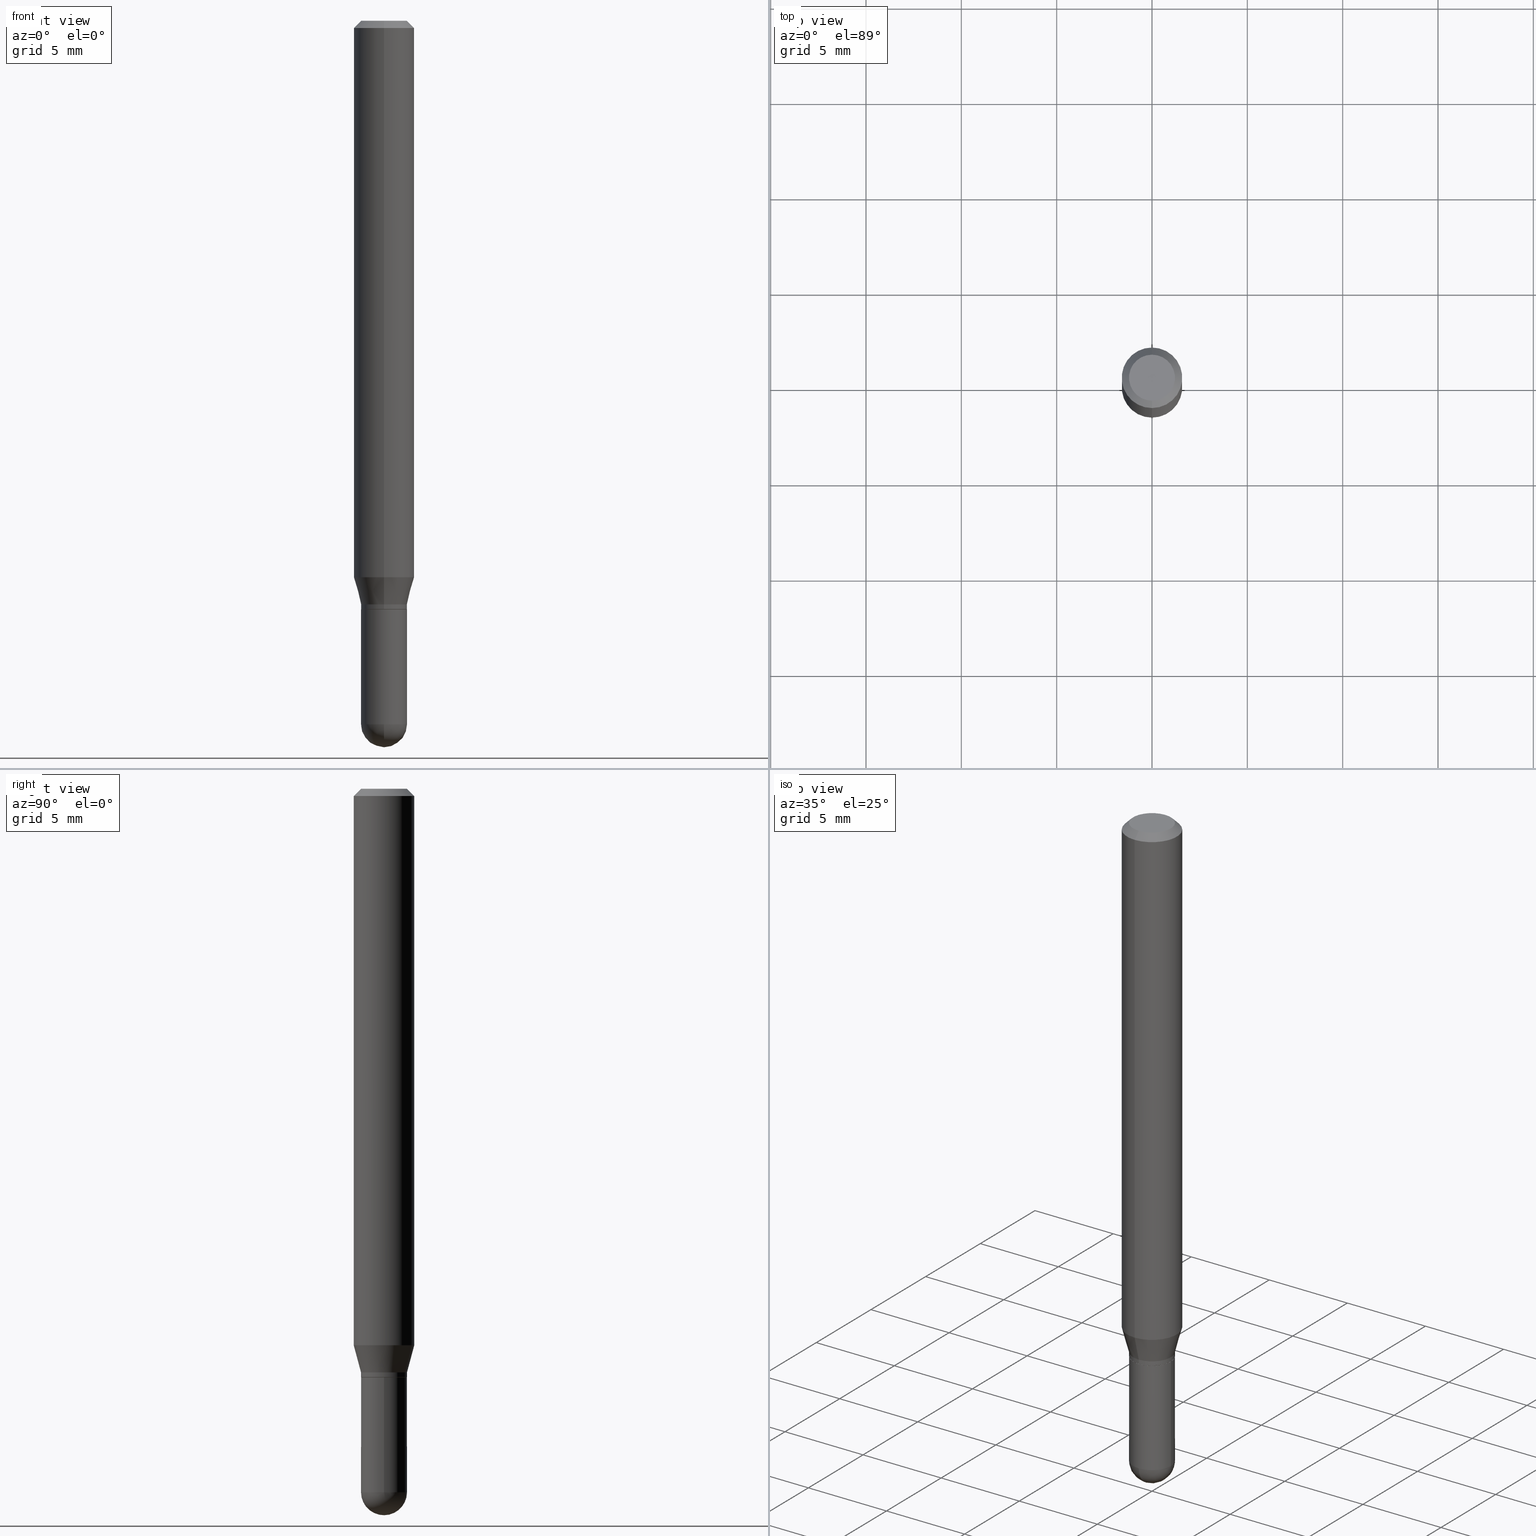
[diagram: canonical four-view strip — front | top / right | iso, engineering-drawing reading convention]
A machine part, canonical four-view strip (front | top / right | iso — engineering-drawing reading convention). The complete STEP part file that produces these views, byte-faithful:
ISO-10303-21;
HEADER;
FILE_DESCRIPTION (( 'STEP AP203' ),
    '1' );
FILE_NAME ('02634.STEP',
    '2024-03-07T20:55:53',
    ( '' ),
    ( '' ),
    'SwSTEP 2.0',
    'SolidWorks 2023',
    '' );
FILE_SCHEMA (( 'CONFIG_CONTROL_DESIGN' ));
ENDSEC;

DATA;
#1 = EDGE_LOOP ( 'NONE', ( #416, #257, #211, #438, #319 ) ) ;
#2 = CIRCLE ( 'NONE', #237, 0.04699999999999999317 ) ;
#3 = EDGE_CURVE ( 'NONE', #334, #105, #156, .T. ) ;
#4 = PERSON_AND_ORGANIZATION ( #120, #260 ) ;
#5 = CARTESIAN_POINT ( 'NONE',  ( 3.375077994860835347E-16, 0.04749999999999498373, -1.452500000000000790 ) ) ;
#6 = PERSON_AND_ORGANIZATION ( #120, #260 ) ;
#7 = EDGE_LOOP ( 'NONE', ( #221, #155, #487, #405 ) ) ;
#8 = CARTESIAN_POINT ( 'NONE',  ( 0.04749999999999999362, -4.573840553884519999E-15, -1.215000000000000080 ) ) ;
#9 = APPLICATION_PROTOCOL_DEFINITION ( 'international standard', 'config_control_design', 1994, #95 ) ;
#10 = ORIENTED_EDGE ( 'NONE', *, *, #439, .T. ) ;
#11 = CARTESIAN_POINT ( 'NONE',  ( 2.971268747987335241E-29, -4.242115244707508975E-15, -1.215000000000000080 ) ) ;
#12 = LOCAL_TIME ( 15, 55, 53.00000000000000000, #483 ) ;
#13 = EDGE_LOOP ( 'NONE', ( #279, #251, #379, #135 ) ) ;
#14 = AXIS2_PLACEMENT_3D ( 'NONE', #432, #309, #182 ) ;
#15 = DIRECTION ( 'NONE',  ( 2.445488681471057444E-29, -3.491452876302475855E-15, -1.000000000000000000 ) ) ;
#16 = AXIS2_PLACEMENT_3D ( 'NONE', #258, #500, #21 ) ;
#17 = EDGE_CURVE ( 'NONE', #484, #216, #201, .T. ) ;
#18 = VERTEX_POINT ( 'NONE', #61 ) ;
#19 = FACE_OUTER_BOUND ( 'NONE', #137, .T. ) ;
#20 = ORIENTED_EDGE ( 'NONE', *, *, #69, .F. ) ;
#21 = DIRECTION ( 'NONE',  ( -6.982962677686265922E-15, -1.000000000000000000, 3.491452876302475461E-15 ) ) ;
#22 = ADVANCED_FACE ( 'NONE', ( #28 ), #504, .T. ) ;
#23 = CARTESIAN_POINT ( 'NONE',  ( -3.316907271900685203E-16, -0.04750000000000432349, -1.214499999999999913 ) ) ;
#24 = CARTESIAN_POINT ( 'NONE',  ( -4.364351673553635169E-16, -0.06250000000000402456, -1.149019237886467204 ) ) ;
#25 = CC_DESIGN_APPROVAL ( #369, ( #236 ) ) ;
#26 = DIRECTION ( 'NONE',  ( -6.982962677686265133E-15, -1.000000000000000000, 2.875629467015010530E-15 ) ) ;
#27 = CARTESIAN_POINT ( 'NONE',  ( 0.04750000000000000749, -3.316907271900977082E-16, 2.316183968503069432E-30 ) ) ;
#28 = FACE_OUTER_BOUND ( 'NONE', #1, .T. ) ;
#29 = ADVANCED_BREP_SHAPE_REPRESENTATION ( '02634', ( #160, #342, #196 ), #420 ) ;
#30 = LINE ( 'NONE', #267, #341 ) ;
#31 = DIRECTION ( 'NONE',  ( -2.445488681471057444E-29, 3.491452876302475855E-15, 1.000000000000000000 ) ) ;
#32 = CARTESIAN_POINT ( 'NONE',  ( 3.668233022206667038E-31, -5.237179314453828365E-17, -0.01500000000000032904 ) ) ;
#33 = EDGE_CURVE ( 'NONE', #397, #18, #144, .T. ) ;
#34 = VECTOR ( 'NONE', #352, 39.37007874015748143 ) ;
#35 = CONICAL_SURFACE ( 'NONE', #184, 0.04750000000000005607, 0.2617993877991497964 ) ;
#36 = CYLINDRICAL_SURFACE ( 'NONE', #250, 0.04750000000000005607 ) ;
#37 = EDGE_CURVE ( 'NONE', #179, #397, #344, .T. ) ;
#38 = DIRECTION ( 'NONE',  ( -2.445468806185136597E-29, 3.491481338843145583E-15, 1.000000000000000000 ) ) ;
#39 = ORIENTED_EDGE ( 'NONE', *, *, #3, .T. ) ;
#40 = PERSON_AND_ORGANIZATION_ROLE ( 'creator' ) ;
#41 = EDGE_CURVE ( 'NONE', #105, #334, #270, .T. ) ;
#42 = PERSON_AND_ORGANIZATION ( #120, #260 ) ;
#43 = AXIS2_PLACEMENT_3D ( 'NONE', #390, #311, #273 ) ;
#44 = DATE_AND_TIME ( #406, #409 ) ;
#45 = CIRCLE ( 'NONE', #228, 0.04750000000000005607 ) ;
#46 = ORIENTED_EDGE ( 'NONE', *, *, #99, .F. ) ;
#47 = CARTESIAN_POINT ( 'NONE',  ( -4.287811248607203282E-16, -0.06250000000000005551, -0.01500000000000011047 ) ) ;
#48 = EDGE_LOOP ( 'NONE', ( #336, #325 ) ) ;
#49 = DIRECTION ( 'NONE',  ( -6.982962677686265922E-15, -1.000000000000000000, 3.483106191921935554E-15 ) ) ;
#50 = PERSON_AND_ORGANIZATION ( #120, #260 ) ;
#51 = EDGE_CURVE ( 'NONE', #18, #397, #437, .T. ) ;
#52 = VERTEX_POINT ( 'NONE', #263 ) ;
#53 = DIRECTION ( 'NONE',  ( -2.445468806185136597E-29, 3.491481338843145583E-15, 1.000000000000000000 ) ) ;
#54 = VECTOR ( 'NONE', #231, 39.37007874015748143 ) ;
#55 = LOCAL_TIME ( 15, 55, 53.00000000000000000, #359 ) ;
#56 = VERTEX_POINT ( 'NONE', #384 ) ;
#57 = DIRECTION ( 'NONE',  ( -2.445488681471057444E-29, 3.491452876302475855E-15, 1.000000000000000000 ) ) ;
#58 = AXIS2_PLACEMENT_3D ( 'NONE', #78, #396, #157 ) ;
#59 = ORIENTED_EDGE ( 'NONE', *, *, #312, .T. ) ;
#60 = APPROVAL ( #168, 'UNSPECIFIED' ) ;
#61 = CARTESIAN_POINT ( 'NONE',  ( 4.440892098500906207E-16, 0.06249999999999597544, -1.149019237886467870 ) ) ;
#62 = CARTESIAN_POINT ( 'NONE',  ( 0.000000000000000000, 0.000000000000000000, 0.000000000000000000 ) ) ;
#63 = DIRECTION ( 'NONE',  ( 1.000000000000000000, -6.982962677686266711E-15, 4.876176775795934672E-29 ) ) ;
#64 = DIRECTION ( 'NONE',  ( -6.982962677686265922E-15, -1.000000000000000000, 3.483106191921935554E-15 ) ) ;
#65 = AXIS2_PLACEMENT_3D ( 'NONE', #355, #509, #315 ) ;
#66 = FACE_OUTER_BOUND ( 'NONE', #463, .T. ) ;
#67 = DIRECTION ( 'NONE',  ( 1.000000000000000000, -6.982962677686261977E-15, 0.000000000000000000 ) ) ;
#68 = DIRECTION ( 'NONE',  ( -6.982962677686265922E-15, -1.000000000000000000, 0.000000000000000000 ) ) ;
#69 = EDGE_CURVE ( 'NONE', #334, #173, #428, .T. ) ;
#70 = DIRECTION ( 'NONE',  ( -6.982962677686265922E-15, -1.000000000000000000, 3.491452876302475855E-15 ) ) ;
#71 = CARTESIAN_POINT ( 'NONE',  ( 2.809913541043856998E-29, -4.011746523045585662E-15, -1.149019237886467426 ) ) ;
#72 = LINE ( 'NONE', #495, #391 ) ;
#73 = PRODUCT ( '02634', '02634', '', ( #285 ) ) ;
#74 = AXIS2_PLACEMENT_3D ( 'NONE', #191, #386, #389 ) ;
#75 = VECTOR ( 'NONE', #433, 39.37007874015748143 ) ;
#76 = CARTESIAN_POINT ( 'NONE',  ( 3.840629472727447874E-16, 0.04749999999999999362, -4.939923113072091241E-16 ) ) ;
#77 = CC_DESIGN_PERSON_AND_ORGANIZATION_ASSIGNMENT ( #243, #329, ( #236 ) ) ;
#78 = CARTESIAN_POINT ( 'NONE',  ( 2.971268747987335241E-29, -4.242115244707508975E-15, -1.215000000000000080 ) ) ;
#79 = ORIENTED_EDGE ( 'NONE', *, *, #197, .F. ) ;
#80 = CARTESIAN_POINT ( 'NONE',  ( -3.316907271900685203E-16, -0.04750000000000426797, -1.205000000000000293 ) ) ;
#81 = AXIS2_PLACEMENT_3D ( 'NONE', #145, #464, #70 ) ;
#82 = DIRECTION ( 'NONE',  ( 1.000000000000000000, 0.000000000000000000, 0.000000000000000000 ) ) ;
#83 = EDGE_LOOP ( 'NONE', ( #414, #238, #244, #489 ) ) ;
#84 = PERSON_AND_ORGANIZATION_ROLE ( 'creator' ) ;
#85 = ORIENTED_EDGE ( 'NONE', *, *, #245, .T. ) ;
#86 = DATE_TIME_ROLE ( 'creation_date' ) ;
#87 = ORIENTED_EDGE ( 'NONE', *, *, #256, .T. ) ;
#88 = DIRECTION ( 'NONE',  ( -6.982962677686266711E-15, -1.000000000000000000, 2.906221269855599689E-15 ) ) ;
#89 = DATE_AND_TIME ( #327, #456 ) ;
#90 = ORIENTED_EDGE ( 'NONE', *, *, #378, .F. ) ;
#91 = FACE_OUTER_BOUND ( 'NONE', #455, .T. ) ;
#92 = PRODUCT_RELATED_PRODUCT_CATEGORY ( 'detail', '', ( #73 ) ) ;
#93 = ORIENTED_EDGE ( 'NONE', *, *, #361, .F. ) ;
#94 = DIRECTION ( 'NONE',  ( -2.445488681471057444E-29, 3.491452876302475855E-15, 1.000000000000000000 ) ) ;
#95 = APPLICATION_CONTEXT ( 'configuration controlled 3d designs of mechanical parts and assemblies' ) ;
#96 = ORIENTED_EDGE ( 'NONE', *, *, #17, .F. ) ;
#97 = DIRECTION ( 'NONE',  ( 2.438088387897960049E-29, -3.491481338843145188E-15, -1.000000000000000000 ) ) ;
#98 = VERTEX_POINT ( 'NONE', #499 ) ;
#99 = EDGE_CURVE ( 'NONE', #173, #179, #45, .T. ) ;
#100 = DIRECTION ( 'NONE',  ( -2.445488681471057444E-29, 3.491452876302475855E-15, 1.000000000000000000 ) ) ;
#101 = AXIS2_PLACEMENT_3D ( 'NONE', #32, #431, #64 ) ;
#102 = DIRECTION ( 'NONE',  ( -2.445488681471057444E-29, 3.491452876302475855E-15, 1.000000000000000000 ) ) ;
#103 = FACE_OUTER_BOUND ( 'NONE', #83, .T. ) ;
#104 =( LENGTH_UNIT ( ) NAMED_UNIT ( * ) SI_UNIT ( $, .METRE. ) );
#105 = VERTEX_POINT ( 'NONE', #23 ) ;
#106 = LINE ( 'NONE', #271, #54 ) ;
#107 = CARTESIAN_POINT ( 'NONE',  ( 3.552043440983912297E-29, -5.071376644669670605E-15, -1.452500000000000346 ) ) ;
#108 = CARTESIAN_POINT ( 'NONE',  ( -3.773273898774340269E-16, -0.04749999999999999362, -1.623042880584739168E-16 ) ) ;
#109 = AXIS2_PLACEMENT_3D ( 'NONE', #188, #348, #346 ) ;
#110 = ADVANCED_FACE ( 'NONE', ( #66 ), #175, .T. ) ;
#111 = SPHERICAL_SURFACE ( 'NONE', #118, 0.04750000000000012546 ) ;
#112 = FACE_OUTER_BOUND ( 'NONE', #421, .T. ) ;
#113 = ORIENTED_EDGE ( 'NONE', *, *, #256, .F. ) ;
#114 = LINE ( 'NONE', #27, #75 ) ;
#115 = CARTESIAN_POINT ( 'NONE',  ( 0.04750000000000000749, -4.988453962872144057E-15, -1.452500000000000346 ) ) ;
#116 = VECTOR ( 'NONE', #304, 39.37007874015748143 ) ;
#117 = EDGE_CURVE ( 'NONE', #166, #131, #375, .T. ) ;
#118 = AXIS2_PLACEMENT_3D ( 'NONE', #469, #460, #272 ) ;
#119 = LINE ( 'NONE', #239, #186 ) ;
#120 = PERSON ( 'UNSPECIFIED', 'UNSPECIFIED', 'UNSPECIFIED', ('UNSPECIFIED'), ('UNSPECIFIED'), ('UNSPECIFIED') ) ;
#121 = ORIENTED_EDGE ( 'NONE', *, *, #17, .T. ) ;
#122 = AXIS2_PLACEMENT_3D ( 'NONE', #367, #374, #410 ) ;
#123 = AXIS2_PLACEMENT_3D ( 'NONE', #306, #149, #461 ) ;
#124 = EDGE_CURVE ( 'NONE', #443, #131, #465, .T. ) ;
#125 = ORIENTED_EDGE ( 'NONE', *, *, #3, .F. ) ;
#126 = DIMENSIONAL_EXPONENTS ( 1.000000000000000000, 0.000000000000000000, 0.000000000000000000, 0.000000000000000000, 0.000000000000000000, 0.000000000000000000, 0.000000000000000000 ) ;
#127 = PERSON_AND_ORGANIZATION ( #120, #260 ) ;
#128 = ORIENTED_EDGE ( 'NONE', *, *, #295, .T. ) ;
#129 = DIRECTION ( 'NONE',  ( 1.000000000000000000, -6.982962677686266711E-15, 4.876176775795934672E-29 ) ) ;
#130 = SHAPE_DEFINITION_REPRESENTATION ( #508, #29 ) ;
#131 = VERTEX_POINT ( 'NONE', #230 ) ;
#132 = CARTESIAN_POINT ( 'NONE',  ( 3.547981401110308940E-29, -5.077193716965619798E-15, -1.452500000000000124 ) ) ;
#133 = ADVANCED_FACE ( 'NONE', ( #501 ), #111, .T. ) ;
#134 = DATE_AND_TIME ( #446, #268 ) ;
#135 = ORIENTED_EDGE ( 'NONE', *, *, #203, .F. ) ;
#136 = CARTESIAN_POINT ( 'NONE',  ( 3.316907271901273398E-16, 0.04749999999999575395, -1.215000000000000302 ) ) ;
#137 = EDGE_LOOP ( 'NONE', ( #376, #261, #206, #159, #320 ) ) ;
#138 = CYLINDRICAL_SURFACE ( 'NONE', #16, 0.06250000000000000000 ) ;
#139 = ORIENTED_EDGE ( 'NONE', *, *, #317, .F. ) ;
#140 =( CONVERSION_BASED_UNIT ( 'INCH', #204 ) LENGTH_UNIT ( ) NAMED_UNIT ( #126 ) );
#141 = UNCERTAINTY_MEASURE_WITH_UNIT (LENGTH_MEASURE( 1.000000000000000082E-05 ), #140, 'distance_accuracy_value', 'NONE');
#142 = CONICAL_SURFACE ( 'NONE', #241, 0.04699999999999999317, 0.7853981633974739252 ) ;
#143 = EDGE_LOOP ( 'NONE', ( #20, #39, #298, #46 ) ) ;
#144 = CIRCLE ( 'NONE', #449, 0.06250000000000000000 ) ;
#145 = CARTESIAN_POINT ( 'NONE',  ( 2.971268747987335241E-29, -4.242115244707508975E-15, -1.215000000000000080 ) ) ;
#146 = DIRECTION ( 'NONE',  ( 1.000000000000000000, -6.982962677686260400E-15, 0.000000000000000000 ) ) ;
#147 = CYLINDRICAL_SURFACE ( 'NONE', #123, 0.04750000000000005607 ) ;
#148 = CARTESIAN_POINT ( 'NONE',  ( 2.971268747987335241E-29, -4.242115244707508975E-15, -1.215000000000000080 ) ) ;
#149 = DIRECTION ( 'NONE',  ( -2.445488681471057444E-29, 3.491452876302475855E-15, 1.000000000000000000 ) ) ;
#150 = CIRCLE ( 'NONE', #503, 0.06250000000000000000 ) ;
#151 = CARTESIAN_POINT ( 'NONE',  ( 3.552043440983912297E-29, -5.071376644669670605E-15, -1.452500000000000346 ) ) ;
#152 = CARTESIAN_POINT ( 'NONE',  ( 2.809913541043856998E-29, -4.011746523045585662E-15, -1.149019237886467426 ) ) ;
#153 = DIRECTION ( 'NONE',  ( -2.445468806185136597E-29, 3.491481338843145583E-15, 1.000000000000000000 ) ) ;
#154 = PRODUCT_DEFINITION ( 'UNKNOWN', '', #225, #441 ) ;
#155 = ORIENTED_EDGE ( 'NONE', *, *, #69, .T. ) ;
#156 = CIRCLE ( 'NONE', #333, 0.04750000000000005607 ) ;
#157 = DIRECTION ( 'NONE',  ( -6.982962677686266711E-15, -1.000000000000000000, 2.906221269855599689E-15 ) ) ;
#158 = DATE_AND_TIME ( #372, #12 ) ;
#159 = ORIENTED_EDGE ( 'NONE', *, *, #470, .F. ) ;
#160 = MANIFOLD_SOLID_BREP ( 'Body-Move/Copy2[1]', #399 ) ;
#161 = EDGE_CURVE ( 'NONE', #52, #284, #411, .T. ) ;
#162 = APPROVAL_ROLE ( '' ) ;
#163 = ORIENTED_EDGE ( 'NONE', *, *, #99, .T. ) ;
#164 = AXIS2_PLACEMENT_3D ( 'NONE', #380, #190, #67 ) ;
#165 = APPROVAL_STATUS ( 'not_yet_approved' ) ;
#166 = VERTEX_POINT ( 'NONE', #493 ) ;
#167 = CARTESIAN_POINT ( 'NONE',  ( 3.668233022206667038E-31, -5.237179314453828365E-17, -0.01500000000000032904 ) ) ;
#168 = APPROVAL_STATUS ( 'not_yet_approved' ) ;
#169 = APPROVAL ( #318, 'UNSPECIFIED' ) ;
#170 = EDGE_LOOP ( 'NONE', ( #219, #10, #227, #93 ) ) ;
#171 = CARTESIAN_POINT ( 'NONE',  ( 2.946813861172625415E-29, -4.207200715944485096E-15, -1.205000000000000293 ) ) ;
#172 = DATE_AND_TIME ( #477, #55 ) ;
#173 = VERTEX_POINT ( 'NONE', #305 ) ;
#174 = DIRECTION ( 'NONE',  ( -4.851104656540964275E-15, -0.7071067811865500152, -0.7071067811865450192 ) ) ;
#175 = CONICAL_SURFACE ( 'NONE', #322, 0.04699999999999999317, 0.7853981633974739252 ) ;
#176 = CIRCLE ( 'NONE', #278, 0.04750000000000005607 ) ;
#177 = ORIENTED_EDGE ( 'NONE', *, *, #37, .T. ) ;
#178 = CARTESIAN_POINT ( 'NONE',  ( 3.375077994860774703E-16, 0.04749999999999578865, -1.214500000000000357 ) ) ;
#179 = VERTEX_POINT ( 'NONE', #80 ) ;
#180 = CARTESIAN_POINT ( 'NONE',  ( 2.946813861172625415E-29, -4.207200715944485096E-15, -1.205000000000000293 ) ) ;
#181 = CC_DESIGN_PERSON_AND_ORGANIZATION_ASSIGNMENT ( #6, #442, ( #73 ) ) ;
#182 = DIRECTION ( 'NONE',  ( 1.000000000000000000, -6.982962677686261977E-15, 0.000000000000000000 ) ) ;
#183 = DIRECTION ( 'NONE',  ( 4.937700262164548042E-15, 0.7071067811865451302, -0.7071067811865499042 ) ) ;
#184 = AXIS2_PLACEMENT_3D ( 'NONE', #294, #94, #326 ) ;
#185 = DIRECTION ( 'NONE',  ( -2.445488681471057444E-29, 3.491452876302475855E-15, 1.000000000000000000 ) ) ;
#186 = VECTOR ( 'NONE', #281, 39.37007874015748143 ) ;
#187 = LINE ( 'NONE', #345, #259 ) ;
#188 = CARTESIAN_POINT ( 'NONE',  ( 2.970046003646599189E-29, -4.240369518269357505E-15, -1.214500000000000135 ) ) ;
#189 = CC_DESIGN_PERSON_AND_ORGANIZATION_ASSIGNMENT ( #127, #84, ( #225 ) ) ;
#190 = DIRECTION ( 'NONE',  ( -2.445468806185136597E-29, 3.491481338843145583E-15, 1.000000000000000000 ) ) ;
#191 = CARTESIAN_POINT ( 'NONE',  ( 8.024829527183616290E-45, -1.145714324781423715E-30, -3.281482996828415081E-16 ) ) ;
#192 = FACE_OUTER_BOUND ( 'NONE', #48, .T. ) ;
#193 = CARTESIAN_POINT ( 'NONE',  ( -3.316907271900685203E-16, -0.04750000000000426797, -1.205000000000000293 ) ) ;
#194 = CONICAL_SURFACE ( 'NONE', #502, 0.06250000000000000000, 0.7853981633974483900 ) ;
#195 = DIRECTION ( 'NONE',  ( 6.982962677686265922E-15, 1.000000000000000000, -3.483106191921935554E-15 ) ) ;
#196 = AXIS2_PLACEMENT_3D ( 'NONE', #253, #402, #82 ) ;
#197 = EDGE_CURVE ( 'NONE', #173, #18, #119, .T. ) ;
#198 = APPLICATION_CONTEXT ( 'configuration controlled 3d designs of mechanical parts and assemblies' ) ;
#199 = CARTESIAN_POINT ( 'NONE',  ( 0.000000000000000000, 0.000000000000000000, 0.000000000000000000 ) ) ;
#200 = VERTEX_POINT ( 'NONE', #115 ) ;
#201 = CIRCLE ( 'NONE', #74, 0.04749999999999999362 ) ;
#202 = VERTEX_POINT ( 'NONE', #398 ) ;
#203 = EDGE_CURVE ( 'NONE', #316, #443, #440, .T. ) ;
#204 = LENGTH_MEASURE_WITH_UNIT ( LENGTH_MEASURE( 0.02539999999999999897 ), #104 );
#205 = APPROVAL_DATE_TIME ( #89, #60 ) ;
#206 = ORIENTED_EDGE ( 'NONE', *, *, #476, .F. ) ;
#207 = AXIS2_PLACEMENT_3D ( 'NONE', #136, #97, #418 ) ;
#208 = AXIS2_PLACEMENT_3D ( 'NONE', #152, #102, #234 ) ;
#209 = ADVANCED_FACE ( 'NONE', ( #472 ), #36, .T. ) ;
#210 =( NAMED_UNIT ( * ) SI_UNIT ( $, .STERADIAN. ) SOLID_ANGLE_UNIT ( ) );
#211 = ORIENTED_EDGE ( 'NONE', *, *, #317, .T. ) ;
#212 = PERSON_AND_ORGANIZATION ( #120, #260 ) ;
#213 = ORIENTED_EDGE ( 'NONE', *, *, #394, .F. ) ;
#214 = CARTESIAN_POINT ( 'NONE',  ( 3.668233022206667038E-31, -5.237179314453828365E-17, -0.01500000000000032904 ) ) ;
#215 = COORDINATED_UNIVERSAL_TIME_OFFSET ( 5, 0, .BEHIND. ) ;
#216 = VERTEX_POINT ( 'NONE', #76 ) ;
#217 = AXIS2_PLACEMENT_3D ( 'NONE', #151, #153, #233 ) ;
#218 = VECTOR ( 'NONE', #174, 39.37007874015748143 ) ;
#219 = ORIENTED_EDGE ( 'NONE', *, *, #226, .T. ) ;
#220 = EDGE_CURVE ( 'NONE', #166, #316, #475, .T. ) ;
#221 = ORIENTED_EDGE ( 'NONE', *, *, #41, .T. ) ;
#222 = DIRECTION ( 'NONE',  ( -6.982962677686265133E-15, -1.000000000000000000, 2.875629467015010530E-15 ) ) ;
#223 = CARTESIAN_POINT ( 'NONE',  ( 3.375077994860479374E-16, 0.04750000000000005607, -1.658440116243677885E-16 ) ) ;
#224 = DIRECTION ( 'NONE',  ( -2.445488681471057444E-29, 3.491452876302475855E-15, 1.000000000000000000 ) ) ;
#225 = PRODUCT_DEFINITION_FORMATION_WITH_SPECIFIED_SOURCE ( 'ANY', '', #73, .NOT_KNOWN. ) ;
#226 = EDGE_CURVE ( 'NONE', #56, #357, #235, .T. ) ;
#227 = ORIENTED_EDGE ( 'NONE', *, *, #41, .F. ) ;
#228 = AXIS2_PLACEMENT_3D ( 'NONE', #313, #307, #392 ) ;
#229 = CARTESIAN_POINT ( 'NONE',  ( 3.339550858072767197E-16, 0.04699999999999575351, -1.215000000000000302 ) ) ;
#230 = CARTESIAN_POINT ( 'NONE',  ( -3.316907271900626039E-16, -0.04750000000000514228, -1.452500000000000124 ) ) ;
#231 = DIRECTION ( 'NONE',  ( -2.445488681471057444E-29, 3.491452876302475855E-15, 1.000000000000000000 ) ) ;
#232 = EDGE_LOOP ( 'NONE', ( #450, #247 ) ) ;
#233 = DIRECTION ( 'NONE',  ( 1.000000000000000000, -6.982962677686260400E-15, 0.000000000000000000 ) ) ;
#234 = DIRECTION ( 'NONE',  ( -6.982962677686265922E-15, -1.000000000000000000, 4.370956789862821150E-15 ) ) ;
#235 = CIRCLE ( 'NONE', #58, 0.04699999999999999317 ) ;
#236 = SECURITY_CLASSIFICATION ( '', '', #479 ) ;
#237 = AXIS2_PLACEMENT_3D ( 'NONE', #297, #422, #88 ) ;
#238 = ORIENTED_EDGE ( 'NONE', *, *, #51, .T. ) ;
#239 = CARTESIAN_POINT ( 'NONE',  ( 3.375077994860774210E-16, 0.04749999999999585110, -1.205000000000000515 ) ) ;
#240 = CC_DESIGN_PERSON_AND_ORGANIZATION_ASSIGNMENT ( #242, #40, ( #154 ) ) ;
#241 = AXIS2_PLACEMENT_3D ( 'NONE', #11, #485, #335 ) ;
#242 = PERSON_AND_ORGANIZATION ( #120, #260 ) ;
#243 = PERSON_AND_ORGANIZATION ( #120, #260 ) ;
#244 = ORIENTED_EDGE ( 'NONE', *, *, #512, .T. ) ;
#245 = EDGE_CURVE ( 'NONE', #357, #56, #2, .T. ) ;
#246 = PERSON_AND_ORGANIZATION_ROLE ( 'design_supplier' ) ;
#247 = ORIENTED_EDGE ( 'NONE', *, *, #161, .T. ) ;
#248 = DIRECTION ( 'NONE',  ( -2.445488681471057444E-29, 3.491452876302475855E-15, 1.000000000000000000 ) ) ;
#249 = APPROVAL_PERSON_ORGANIZATION ( #212, #169, #362 ) ;
#250 = AXIS2_PLACEMENT_3D ( 'NONE', #199, #277, #436 ) ;
#251 = ORIENTED_EDGE ( 'NONE', *, *, #117, .T. ) ;
#252 = DIRECTION ( 'NONE',  ( 1.000000000000000000, -6.982962677686265922E-15, 4.883557194083112901E-29 ) ) ;
#253 = CARTESIAN_POINT ( 'NONE',  ( 0.000000000000000000, 0.000000000000000000, 0.000000000000000000 ) ) ;
#254 = ORIENTED_EDGE ( 'NONE', *, *, #423, .T. ) ;
#255 = DIRECTION ( 'NONE',  ( -6.982962677686265133E-15, -1.000000000000000000, 2.875629467015010530E-15 ) ) ;
#256 = EDGE_CURVE ( 'NONE', #484, #202, #451, .T. ) ;
#257 = ORIENTED_EDGE ( 'NONE', *, *, #124, .T. ) ;
#258 = CARTESIAN_POINT ( 'NONE',  ( 0.000000000000000000, 0.000000000000000000, 0.000000000000000000 ) ) ;
#259 = VECTOR ( 'NONE', #498, 39.37007874015748143 ) ;
#260 = ORGANIZATION ( 'UNSPECIFIED', 'UNSPECIFIED', '' ) ;
#261 = ORIENTED_EDGE ( 'NONE', *, *, #497, .T. ) ;
#262 = SPHERICAL_SURFACE ( 'NONE', #466, 0.04750000000000012546 ) ;
#263 = CARTESIAN_POINT ( 'NONE',  ( -0.04749999999999999362, -4.319255436195999053E-15, -1.215000000000000080 ) ) ;
#264 = DIRECTION ( 'NONE',  ( 2.445488681471057163E-29, -3.491452876302475855E-15, -1.000000000000000000 ) ) ;
#265 = EDGE_CURVE ( 'NONE', #98, #202, #150, .T. ) ;
#266 = ORIENTED_EDGE ( 'NONE', *, *, #33, .F. ) ;
#267 = CARTESIAN_POINT ( 'NONE',  ( 4.364351673553919652E-16, 0.06249999999999995143, -0.01500000000000054588 ) ) ;
#268 = LOCAL_TIME ( 15, 55, 53.00000000000000000, #404 ) ;
#269 = DIRECTION ( 'NONE',  ( -2.445468806185136597E-29, 3.491481338843145583E-15, 1.000000000000000000 ) ) ;
#270 = CIRCLE ( 'NONE', #109, 0.04750000000000005607 ) ;
#271 = CARTESIAN_POINT ( 'NONE',  ( -4.364351673553916201E-16, -0.06250000000000000000, 2.182158047689047163E-16 ) ) ;
#272 = DIRECTION ( 'NONE',  ( -6.982962677686265922E-15, -1.000000000000000000, 5.751258934030012383E-15 ) ) ;
#273 = DIRECTION ( 'NONE',  ( -6.982962677686266711E-15, -1.000000000000000000, 3.491452876302476644E-15 ) ) ;
#274 = CARTESIAN_POINT ( 'NONE',  ( 0.000000000000000000, 0.000000000000000000, 0.000000000000000000 ) ) ;
#275 = ADVANCED_FACE ( 'NONE', ( #377 ), #35, .T. ) ;
#276 = CARTESIAN_POINT ( 'NONE',  ( 3.357314426466772183E-16, 0.04699999999999575351, -1.215000000000000302 ) ) ;
#277 = DIRECTION ( 'NONE',  ( -2.445488681471057444E-29, 3.491452876302475855E-15, 1.000000000000000000 ) ) ;
#278 = AXIS2_PLACEMENT_3D ( 'NONE', #171, #57, #222 ) ;
#279 = ORIENTED_EDGE ( 'NONE', *, *, #220, .F. ) ;
#280 = ADVANCED_FACE ( 'NONE', ( #457 ), #353, .T. ) ;
#281 = DIRECTION ( 'NONE',  ( 1.839019923739597160E-15, 0.2588190451025245142, 0.9659258262890673130 ) ) ;
#282 = APPLICATION_PROTOCOL_DEFINITION ( 'international standard', 'config_control_design', 1994, #198 ) ;
#283 = AXIS2_PLACEMENT_3D ( 'NONE', #214, #15, #371 ) ;
#284 = VERTEX_POINT ( 'NONE', #8 ) ;
#285 = MECHANICAL_CONTEXT ( 'NONE', #95, 'mechanical' ) ;
#286 = ADVANCED_FACE ( 'NONE', ( #19 ), #448, .T. ) ;
#287 = COORDINATED_UNIVERSAL_TIME_OFFSET ( 5, 0, .BEHIND. ) ;
#288 = ORIENTED_EDGE ( 'NONE', *, *, #51, .F. ) ;
#289 = LINE ( 'NONE', #337, #435 ) ;
#290 = EDGE_LOOP ( 'NONE', ( #400, #128, #408, #366 ) ) ;
#291 = AXIS2_PLACEMENT_3D ( 'NONE', #395, #38, #507 ) ;
#292 =( NAMED_UNIT ( * ) PLANE_ANGLE_UNIT ( ) SI_UNIT ( $, .RADIAN. ) );
#293 = ORIENTED_EDGE ( 'NONE', *, *, #439, .F. ) ;
#294 = CARTESIAN_POINT ( 'NONE',  ( 2.946813861172625415E-29, -4.207200715944485096E-15, -1.205000000000000293 ) ) ;
#295 = EDGE_CURVE ( 'NONE', #18, #98, #289, .T. ) ;
#296 = ORIENTED_EDGE ( 'NONE', *, *, #197, .T. ) ;
#297 = CARTESIAN_POINT ( 'NONE',  ( 2.971268747987335241E-29, -4.242115244707508975E-15, -1.215000000000000080 ) ) ;
#298 = ORIENTED_EDGE ( 'NONE', *, *, #387, .T. ) ;
#299 = FACE_OUTER_BOUND ( 'NONE', #170, .T. ) ;
#300 = CC_DESIGN_APPROVAL ( #169, ( #225 ) ) ;
#301 = AXIS2_PLACEMENT_3D ( 'NONE', #385, #264, #471 ) ;
#302 = DIRECTION ( 'NONE',  ( -6.982962677686265922E-15, -1.000000000000000000, 4.370956789862821150E-15 ) ) ;
#303 = ADVANCED_FACE ( 'NONE', ( #413 ), #323, .T. ) ;
#304 = DIRECTION ( 'NONE',  ( 5.024295867788190974E-15, 0.7071067811865681119, 0.7071067811865270336 ) ) ;
#305 = CARTESIAN_POINT ( 'NONE',  ( 3.907985046680840948E-16, 0.04749999999999585110, -1.205000000000000515 ) ) ;
#306 = CARTESIAN_POINT ( 'NONE',  ( 0.000000000000000000, 0.000000000000000000, 0.000000000000000000 ) ) ;
#307 = DIRECTION ( 'NONE',  ( -2.445488681471057444E-29, 3.491452876302475855E-15, 1.000000000000000000 ) ) ;
#308 = CARTESIAN_POINT ( 'NONE',  ( -3.316907271900980040E-16, -0.04750000000000005607, 1.658440116243677885E-16 ) ) ;
#309 = DIRECTION ( 'NONE',  ( -2.445468806185136597E-29, 3.491481338843145583E-15, 1.000000000000000000 ) ) ;
#310 = VECTOR ( 'NONE', #340, 39.37007874015748143 ) ;
#311 = DIRECTION ( 'NONE',  ( -2.445488681471057444E-29, 3.491452876302475855E-15, 1.000000000000000000 ) ) ;
#312 = EDGE_CURVE ( 'NONE', #179, #173, #176, .T. ) ;
#313 = CARTESIAN_POINT ( 'NONE',  ( 2.946813861172625415E-29, -4.207200715944485096E-15, -1.205000000000000293 ) ) ;
#314 = DIRECTION ( 'NONE',  ( 2.445488681471057444E-29, -3.491452876302475855E-15, -1.000000000000000000 ) ) ;
#315 = DIRECTION ( 'NONE',  ( 7.105427357601001070E-15, 1.000000000000000000, 0.000000000000000000 ) ) ;
#316 = VERTEX_POINT ( 'NONE', #5 ) ;
#317 = EDGE_CURVE ( 'NONE', #131, #200, #363, .T. ) ;
#318 = APPROVAL_STATUS ( 'not_yet_approved' ) ;
#319 = ORIENTED_EDGE ( 'NONE', *, *, #161, .F. ) ;
#320 = ORIENTED_EDGE ( 'NONE', *, *, #378, .T. ) ;
#321 = CC_DESIGN_APPROVAL ( #60, ( #154 ) ) ;
#322 = AXIS2_PLACEMENT_3D ( 'NONE', #148, #185, #339 ) ;
#323 = CONICAL_SURFACE ( 'NONE', #283, 0.06250000000000000000, 0.7853981633974483900 ) ;
#324 = DATE_TIME_ROLE ( 'classification_date' ) ;
#325 = ORIENTED_EDGE ( 'NONE', *, *, #245, .F. ) ;
#326 = DIRECTION ( 'NONE',  ( -6.982962677686265133E-15, -1.000000000000000000, 2.875629467015010530E-15 ) ) ;
#327 = CALENDAR_DATE ( 2024, 7, 3 ) ;
#328 = EDGE_LOOP ( 'NONE', ( #96, #87, #254, #473 ) ) ;
#329 = PERSON_AND_ORGANIZATION_ROLE ( 'classification_officer' ) ;
#330 = ORIENTED_EDGE ( 'NONE', *, *, #117, .F. ) ;
#331 = FACE_OUTER_BOUND ( 'NONE', #232, .T. ) ;
#332 = ADVANCED_FACE ( 'NONE', ( #91 ), #262, .T. ) ;
#333 = AXIS2_PLACEMENT_3D ( 'NONE', #430, #31, #26 ) ;
#334 = VERTEX_POINT ( 'NONE', #178 ) ;
#335 = DIRECTION ( 'NONE',  ( -6.982962677686266711E-15, -1.000000000000000000, 2.906221269855599689E-15 ) ) ;
#336 = ORIENTED_EDGE ( 'NONE', *, *, #226, .F. ) ;
#337 = CARTESIAN_POINT ( 'NONE',  ( 4.440892098500625669E-16, 0.06250000000000000000, -2.182158047689047163E-16 ) ) ;
#338 = ADVANCED_FACE ( 'NONE', ( #299 ), #142, .T. ) ;
#339 = DIRECTION ( 'NONE',  ( -6.982962677686266711E-15, -1.000000000000000000, 2.906221269855599689E-15 ) ) ;
#340 = DIRECTION ( 'NONE',  ( -2.445488681471057444E-29, 3.491452876302475855E-15, 1.000000000000000000 ) ) ;
#341 = VECTOR ( 'NONE', #183, 39.37007874015748143 ) ;
#342 = MANIFOLD_SOLID_BREP ( 'Body-Move/Copy2[2]', #383 ) ;
#343 = AXIS2_PLACEMENT_3D ( 'NONE', #496, #467, #68 ) ;
#344 = LINE ( 'NONE', #193, #34 ) ;
#345 = CARTESIAN_POINT ( 'NONE',  ( -0.04750000000000000749, 3.375077994860476415E-16, -2.336494167871080260E-30 ) ) ;
#346 = DIRECTION ( 'NONE',  ( -6.982962677686265133E-15, -1.000000000000000000, 2.875629467015010530E-15 ) ) ;
#347 = FACE_OUTER_BOUND ( 'NONE', #143, .T. ) ;
#348 = DIRECTION ( 'NONE',  ( -2.445488681471057444E-29, 3.491452876302475855E-15, 1.000000000000000000 ) ) ;
#349 = LINE ( 'NONE', #229, #116 ) ;
#350 = ADVANCED_FACE ( 'NONE', ( #331 ), #488, .F. ) ;
#351 = APPROVAL_PERSON_ORGANIZATION ( #50, #60, #162 ) ;
#352 = DIRECTION ( 'NONE',  ( -1.807323732225326984E-15, -0.2588190451025177419, 0.9659258262890690894 ) ) ;
#353 = CONICAL_SURFACE ( 'NONE', #407, 0.04750000000000005607, 0.2617993877991497964 ) ;
#354 = PLANE ( 'NONE',  #301 ) ;
#355 = CARTESIAN_POINT ( 'NONE',  ( 3.547981401110308940E-29, -5.077193716965619798E-15, -1.452500000000000124 ) ) ;
#356 = ADVANCED_FACE ( 'NONE', ( #490 ), #138, .T. ) ;
#357 = VERTEX_POINT ( 'NONE', #276 ) ;
#358 = EDGE_LOOP ( 'NONE', ( #113, #213, #452, #482 ) ) ;
#359 = COORDINATED_UNIVERSAL_TIME_OFFSET ( 5, 0, .BEHIND. ) ;
#360 = ORIENTED_EDGE ( 'NONE', *, *, #394, .T. ) ;
#361 = EDGE_CURVE ( 'NONE', #56, #105, #72, .T. ) ;
#362 = APPROVAL_ROLE ( '' ) ;
#363 = CIRCLE ( 'NONE', #122, 0.04750000000000000749 ) ;
#364 = AXIS2_PLACEMENT_3D ( 'NONE', #62, #224, #382 ) ;
#365 = APPROVAL_DATE_TIME ( #44, #369 ) ;
#366 = ORIENTED_EDGE ( 'NONE', *, *, #512, .F. ) ;
#367 = CARTESIAN_POINT ( 'NONE',  ( 3.552043440983912297E-29, -5.071376644669670605E-15, -1.452500000000000346 ) ) ;
#368 = APPROVAL_DATE_TIME ( #172, #169 ) ;
#369 = APPROVAL ( #165, 'UNSPECIFIED' ) ;
#370 = EDGE_LOOP ( 'NONE', ( #59, #296, #266, #447 ) ) ;
#371 = DIRECTION ( 'NONE',  ( 6.982962677686265922E-15, 1.000000000000000000, -3.483106191921935554E-15 ) ) ;
#372 = CALENDAR_DATE ( 2024, 7, 3 ) ;
#373 = ORIENTED_EDGE ( 'NONE', *, *, #361, .T. ) ;
#374 = DIRECTION ( 'NONE',  ( -2.445468806185136597E-29, 3.491481338843145583E-15, 1.000000000000000000 ) ) ;
#375 = CIRCLE ( 'NONE', #343, 0.04750000000000012546 ) ;
#376 = ORIENTED_EDGE ( 'NONE', *, *, #203, .T. ) ;
#377 = FACE_OUTER_BOUND ( 'NONE', #412, .T. ) ;
#378 = EDGE_CURVE ( 'NONE', #200, #316, #417, .T. ) ;
#379 = ORIENTED_EDGE ( 'NONE', *, *, #124, .F. ) ;
#380 = CARTESIAN_POINT ( 'NONE',  ( 2.971244599514941458E-29, -4.242149826694422488E-15, -1.215000000000000080 ) ) ;
#381 = DIRECTION ( 'NONE',  ( -2.445488681471057444E-29, 3.491452876302475855E-15, 1.000000000000000000 ) ) ;
#382 = DIRECTION ( 'NONE',  ( -6.982962677686265922E-15, -1.000000000000000000, 3.491452876302475461E-15 ) ) ;
#383 = CLOSED_SHELL ( 'NONE', ( #209, #338, #427, #356, #280, #275, #491, #303, #454, #434, #110, #506 ) ) ;
#384 = CARTESIAN_POINT ( 'NONE',  ( -3.281992458512247736E-16, -0.04700000000000423978, -1.215000000000000080 ) ) ;
#385 = CARTESIAN_POINT ( 'NONE',  ( 3.316907271900976096E-16, 0.04749999999999999362, -3.299181614657883454E-16 ) ) ;
#386 = DIRECTION ( 'NONE',  ( -2.445488681471057444E-29, 3.491452876302475855E-15, 1.000000000000000000 ) ) ;
#387 = EDGE_CURVE ( 'NONE', #105, #179, #426, .T. ) ;
#388 = FACE_OUTER_BOUND ( 'NONE', #328, .T. ) ;
#389 = DIRECTION ( 'NONE',  ( -6.982962677686266711E-15, -1.000000000000000000, 3.491452876302476644E-15 ) ) ;
#390 = CARTESIAN_POINT ( 'NONE',  ( 8.024829527183616290E-45, -1.145714324781423715E-30, -3.281482996828415081E-16 ) ) ;
#391 = VECTOR ( 'NONE', #505, 39.37007874015748143 ) ;
#392 = DIRECTION ( 'NONE',  ( -6.982962677686265133E-15, -1.000000000000000000, 2.875629467015010530E-15 ) ) ;
#393 = CIRCLE ( 'NONE', #101, 0.06250000000000000000 ) ;
#394 = EDGE_CURVE ( 'NONE', #216, #484, #494, .T. ) ;
#395 = CARTESIAN_POINT ( 'NONE',  ( 3.552043440983912297E-29, -5.071376644669670605E-15, -1.452500000000000346 ) ) ;
#396 = DIRECTION ( 'NONE',  ( -2.445488681471057444E-29, 3.491452876302475855E-15, 1.000000000000000000 ) ) ;
#397 = VERTEX_POINT ( 'NONE', #24 ) ;
#398 = CARTESIAN_POINT ( 'NONE',  ( -4.364351673553912750E-16, -0.06250000000000005551, -0.01500000000000011047 ) ) ;
#399 = CLOSED_SHELL ( 'NONE', ( #286, #332, #350, #133, #22 ) ) ;
#400 = ORIENTED_EDGE ( 'NONE', *, *, #33, .T. ) ;
#401 = VECTOR ( 'NONE', #381, 39.37007874015748143 ) ;
#402 = DIRECTION ( 'NONE',  ( 0.000000000000000000, 0.000000000000000000, 1.000000000000000000 ) ) ;
#403 = EDGE_CURVE ( 'NONE', #216, #98, #30, .T. ) ;
#404 = COORDINATED_UNIVERSAL_TIME_OFFSET ( 5, 0, .BEHIND. ) ;
#405 = ORIENTED_EDGE ( 'NONE', *, *, #387, .F. ) ;
#406 = CALENDAR_DATE ( 2024, 7, 3 ) ;
#407 = AXIS2_PLACEMENT_3D ( 'NONE', #180, #100, #255 ) ;
#408 = ORIENTED_EDGE ( 'NONE', *, *, #423, .F. ) ;
#409 = LOCAL_TIME ( 15, 55, 53.00000000000000000, #287 ) ;
#410 = DIRECTION ( 'NONE',  ( 1.000000000000000000, -6.982962677686260400E-15, 0.000000000000000000 ) ) ;
#411 = CIRCLE ( 'NONE', #14, 0.04749999999999999362 ) ;
#412 = EDGE_LOOP ( 'NONE', ( #79, #163, #177, #288 ) ) ;
#413 = FACE_OUTER_BOUND ( 'NONE', #358, .T. ) ;
#414 = ORIENTED_EDGE ( 'NONE', *, *, #295, .F. ) ;
#415 = CARTESIAN_POINT ( 'NONE',  ( 0.000000000000000000, 0.000000000000000000, 0.000000000000000000 ) ) ;
#416 = ORIENTED_EDGE ( 'NONE', *, *, #497, .F. ) ;
#417 = CIRCLE ( 'NONE', #217, 0.04750000000000000749 ) ;
#418 = DIRECTION ( 'NONE',  ( -1.000000000000000000, 6.982962677686265922E-15, -4.876176775795935793E-29 ) ) ;
#419 = AXIS2_PLACEMENT_3D ( 'NONE', #274, #425, #63 ) ;
#420 =( GEOMETRIC_REPRESENTATION_CONTEXT ( 3 ) GLOBAL_UNCERTAINTY_ASSIGNED_CONTEXT ( ( #141 ) ) GLOBAL_UNIT_ASSIGNED_CONTEXT ( ( #140, #292, #210 ) ) REPRESENTATION_CONTEXT ( 'NONE', 'WORKASPACE' ) );
#421 = EDGE_LOOP ( 'NONE', ( #360, #121 ) ) ;
#422 = DIRECTION ( 'NONE',  ( -2.445488681471057444E-29, 3.491452876302475855E-15, 1.000000000000000000 ) ) ;
#423 = EDGE_CURVE ( 'NONE', #202, #98, #393, .T. ) ;
#424 = CYLINDRICAL_SURFACE ( 'NONE', #364, 0.06250000000000000000 ) ;
#425 = DIRECTION ( 'NONE',  ( -2.445468806185136597E-29, 3.491481338843145583E-15, 1.000000000000000000 ) ) ;
#426 = LINE ( 'NONE', #308, #310 ) ;
#427 = ADVANCED_FACE ( 'NONE', ( #388 ), #194, .T. ) ;
#428 = LINE ( 'NONE', #223, #401 ) ;
#429 = PLANE ( 'NONE',  #81 ) ;
#430 = CARTESIAN_POINT ( 'NONE',  ( 2.970046003646599189E-29, -4.240369518269357505E-15, -1.214500000000000135 ) ) ;
#431 = DIRECTION ( 'NONE',  ( -2.445488681471057444E-29, 3.491452876302475855E-15, 1.000000000000000000 ) ) ;
#432 = CARTESIAN_POINT ( 'NONE',  ( 2.971244599514941458E-29, -4.242149826694422488E-15, -1.215000000000000080 ) ) ;
#433 = DIRECTION ( 'NONE',  ( -2.445468806185136877E-29, 3.491481338843145188E-15, 1.000000000000000000 ) ) ;
#434 = ADVANCED_FACE ( 'NONE', ( #192 ), #429, .F. ) ;
#435 = VECTOR ( 'NONE', #248, 39.37007874015748143 ) ;
#436 = DIRECTION ( 'NONE',  ( -6.982962677686265133E-15, -1.000000000000000000, 3.491452876302475461E-15 ) ) ;
#437 = CIRCLE ( 'NONE', #208, 0.06250000000000000000 ) ;
#438 = ORIENTED_EDGE ( 'NONE', *, *, #470, .T. ) ;
#439 = EDGE_CURVE ( 'NONE', #357, #334, #349, .T. ) ;
#440 = CIRCLE ( 'NONE', #291, 0.04750000000000000749 ) ;
#441 = DESIGN_CONTEXT ( 'detailed design', #198, 'design' ) ;
#442 = PERSON_AND_ORGANIZATION_ROLE ( 'design_owner' ) ;
#443 = VERTEX_POINT ( 'NONE', #459 ) ;
#444 = DIRECTION ( 'NONE',  ( -2.445488681471057444E-29, 3.491452876302475855E-15, 1.000000000000000000 ) ) ;
#445 = CC_DESIGN_PERSON_AND_ORGANIZATION_ASSIGNMENT ( #4, #246, ( #225 ) ) ;
#446 = CALENDAR_DATE ( 2024, 7, 3 ) ;
#447 = ORIENTED_EDGE ( 'NONE', *, *, #37, .F. ) ;
#448 = CYLINDRICAL_SURFACE ( 'NONE', #474, 0.04750000000000000749 ) ;
#449 = AXIS2_PLACEMENT_3D ( 'NONE', #71, #458, #302 ) ;
#450 = ORIENTED_EDGE ( 'NONE', *, *, #476, .T. ) ;
#451 = LINE ( 'NONE', #47, #218 ) ;
#452 = ORIENTED_EDGE ( 'NONE', *, *, #403, .T. ) ;
#453 = DIRECTION ( 'NONE',  ( -6.982962677686265922E-15, -1.000000000000000000, 5.751258934030012383E-15 ) ) ;
#454 = ADVANCED_FACE ( 'NONE', ( #112 ), #354, .F. ) ;
#455 = EDGE_LOOP ( 'NONE', ( #330, #492, #90, #139 ) ) ;
#456 = LOCAL_TIME ( 15, 55, 53.00000000000000000, #215 ) ;
#457 = FACE_OUTER_BOUND ( 'NONE', #370, .T. ) ;
#458 = DIRECTION ( 'NONE',  ( -2.445488681471057444E-29, 3.491452876302475855E-15, 1.000000000000000000 ) ) ;
#459 = CARTESIAN_POINT ( 'NONE',  ( -0.04750000000000000749, -4.319255436195999053E-15, -1.452500000000000346 ) ) ;
#460 = DIRECTION ( 'NONE',  ( 1.000000000000000000, -6.982962677686265922E-15, 4.883557194083112901E-29 ) ) ;
#461 = DIRECTION ( 'NONE',  ( -6.982962677686265133E-15, -1.000000000000000000, 3.491452876302475461E-15 ) ) ;
#462 = CC_DESIGN_DATE_AND_TIME_ASSIGNMENT ( #134, #324, ( #236 ) ) ;
#463 = EDGE_LOOP ( 'NONE', ( #293, #85, #373, #125 ) ) ;
#464 = DIRECTION ( 'NONE',  ( -2.445488681471057163E-29, 3.491452876302475855E-15, 1.000000000000000000 ) ) ;
#465 = CIRCLE ( 'NONE', #511, 0.04750000000000000749 ) ;
#466 = AXIS2_PLACEMENT_3D ( 'NONE', #132, #252, #453 ) ;
#467 = DIRECTION ( 'NONE',  ( -1.000000000000000000, 6.982962677686265922E-15, -4.883557194083112340E-29 ) ) ;
#468 = CARTESIAN_POINT ( 'NONE',  ( 3.668233022206667038E-31, -5.237179314453828365E-17, -0.01500000000000032904 ) ) ;
#469 = CARTESIAN_POINT ( 'NONE',  ( 3.547981401110308940E-29, -5.077193716965619798E-15, -1.452500000000000124 ) ) ;
#470 = EDGE_CURVE ( 'NONE', #200, #284, #114, .T. ) ;
#471 = DIRECTION ( 'NONE',  ( 6.982962677686265922E-15, 1.000000000000000000, -3.491452876302475855E-15 ) ) ;
#472 = FACE_OUTER_BOUND ( 'NONE', #7, .T. ) ;
#473 = ORIENTED_EDGE ( 'NONE', *, *, #403, .F. ) ;
#474 = AXIS2_PLACEMENT_3D ( 'NONE', #415, #53, #129 ) ;
#475 = CIRCLE ( 'NONE', #65, 0.04750000000000012546 ) ;
#476 = EDGE_CURVE ( 'NONE', #284, #52, #478, .T. ) ;
#477 = CALENDAR_DATE ( 2024, 7, 3 ) ;
#478 = CIRCLE ( 'NONE', #164, 0.04749999999999999362 ) ;
#479 = SECURITY_CLASSIFICATION_LEVEL ( 'unclassified' ) ;
#480 = APPROVAL_ROLE ( '' ) ;
#481 = CC_DESIGN_DATE_AND_TIME_ASSIGNMENT ( #158, #86, ( #154 ) ) ;
#482 = ORIENTED_EDGE ( 'NONE', *, *, #265, .T. ) ;
#483 = COORDINATED_UNIVERSAL_TIME_OFFSET ( 5, 0, .BEHIND. ) ;
#484 = VERTEX_POINT ( 'NONE', #108 ) ;
#485 = DIRECTION ( 'NONE',  ( -2.445488681471057444E-29, 3.491452876302475855E-15, 1.000000000000000000 ) ) ;
#486 = APPROVAL_PERSON_ORGANIZATION ( #42, #369, #480 ) ;
#487 = ORIENTED_EDGE ( 'NONE', *, *, #312, .F. ) ;
#488 = PLANE ( 'NONE',  #207 ) ;
#489 = ORIENTED_EDGE ( 'NONE', *, *, #265, .F. ) ;
#490 = FACE_OUTER_BOUND ( 'NONE', #290, .T. ) ;
#491 = ADVANCED_FACE ( 'NONE', ( #103 ), #424, .T. ) ;
#492 = ORIENTED_EDGE ( 'NONE', *, *, #220, .T. ) ;
#493 = CARTESIAN_POINT ( 'NONE',  ( 3.662110149467302662E-29, -5.245947616708644728E-15, -1.500000000000000444 ) ) ;
#494 = CIRCLE ( 'NONE', #43, 0.04749999999999999362 ) ;
#495 = CARTESIAN_POINT ( 'NONE',  ( -3.281992458512247736E-16, -0.04700000000000423978, -1.215000000000000080 ) ) ;
#496 = CARTESIAN_POINT ( 'NONE',  ( 3.547981401110308940E-29, -5.077193716965619798E-15, -1.452500000000000124 ) ) ;
#497 = EDGE_CURVE ( 'NONE', #443, #52, #187, .T. ) ;
#498 = DIRECTION ( 'NONE',  ( -2.445468806185136877E-29, 3.491481338843145188E-15, 1.000000000000000000 ) ) ;
#499 = CARTESIAN_POINT ( 'NONE',  ( 4.440892098500909166E-16, 0.06249999999999995143, -0.01500000000000054588 ) ) ;
#500 = DIRECTION ( 'NONE',  ( -2.445488681471057444E-29, 3.491452876302475855E-15, 1.000000000000000000 ) ) ;
#501 = FACE_OUTER_BOUND ( 'NONE', #13, .T. ) ;
#502 = AXIS2_PLACEMENT_3D ( 'NONE', #468, #314, #195 ) ;
#503 = AXIS2_PLACEMENT_3D ( 'NONE', #167, #444, #49 ) ;
#504 = CYLINDRICAL_SURFACE ( 'NONE', #419, 0.04750000000000000749 ) ;
#505 = DIRECTION ( 'NONE',  ( -4.937700262164674260E-15, -0.7071067811865632269, 0.7071067811865319186 ) ) ;
#506 = ADVANCED_FACE ( 'NONE', ( #347 ), #147, .T. ) ;
#507 = DIRECTION ( 'NONE',  ( 1.000000000000000000, -6.982962677686260400E-15, 0.000000000000000000 ) ) ;
#508 = PRODUCT_DEFINITION_SHAPE ( 'NONE', 'NONE',  #154 ) ;
#509 = DIRECTION ( 'NONE',  ( 1.000000000000000000, -7.105427357601001070E-15, 4.926315508542082329E-29 ) ) ;
#510 = CC_DESIGN_SECURITY_CLASSIFICATION ( #236, ( #225 ) ) ;
#511 = AXIS2_PLACEMENT_3D ( 'NONE', #107, #269, #146 ) ;
#512 = EDGE_CURVE ( 'NONE', #397, #202, #106, .T. ) ;
ENDSEC;
END-ISO-10303-21;
